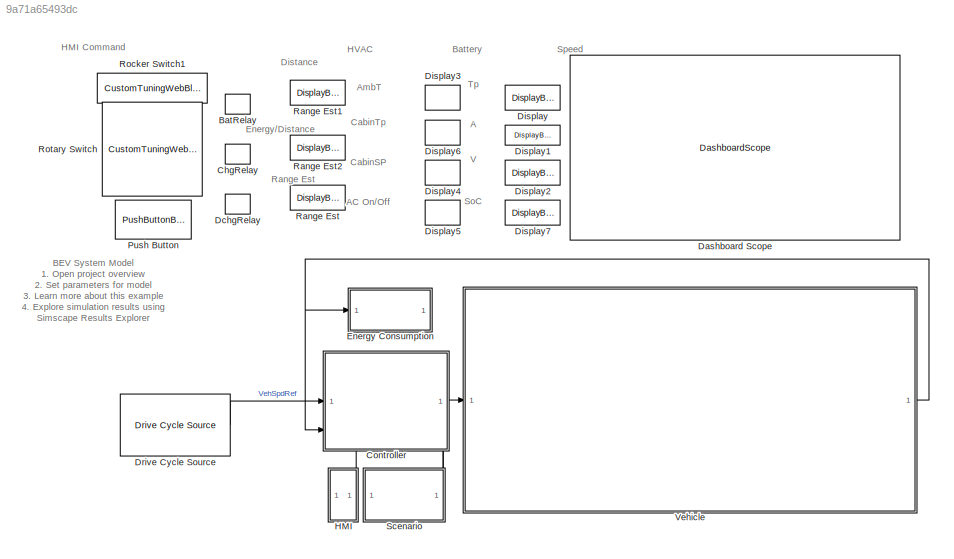
MODEL slx_9a71a65493dc
KIND model
CONFIG AbsTol = auto
CONFIG EnableMultiTasking = off
CONFIG FixedStep = auto
CONFIG MaxStep = auto
CONFIG MinStep = auto
CONFIG PreLoadFcn = % Load all parameters\nBEVSystemModelParams; % Load model parameters\n
CONFIG RelTol = 1e-3
CONFIG SampleTimeConstraint = Unconstrained
CONFIG SolverName = daessc
CONFIG StartTime = 0
CONFIG StopTime = 50
BLOCK [LampBlock] BatRelay
  LabelPosition = Hide
  NameLocation = top
BLOCK [LampBlock] ChgRelay
  LabelPosition = Hide
  NameLocation = top
BLOCK [SubSystem] Controller
  PortSchema = {"entries":[{"content":{"sides":[{"content":{"connectorIds":["In4","In1"]},"type":"ConnectorPlacement.EquallySpacedRectSide","uuid":"c1a23be5-b2bd-489c-89d3-d8ff166adbae"},{"content":{"connectorIds":["Out1"],"side":"RIGHT"},"type":"ConnectorPlacement.EquallySpacedRectSide","uuid":"158e6e89-d1bb-4c90-8b36-55bfa29ba4ac"},{"content":{"side":"TOP"},"type":"ConnectorPlacement.EquallySpacedRectSide","uu...<+389ch>
  ReferencedSubsystem = ControllerFRM
BLOCK [DashboardScope] Dashboard Scope
  Ymax = 150
  Ymin = 0
BLOCK [LampBlock] DchgRelay
  LabelPosition = Hide
  NameLocation = top
BLOCK [DisplayBlock] Display
  Format = Custom
  FormatString = %.2f
  LabelPosition = Hide
  Transparency = 1
BLOCK [DisplayBlock] Display1
  Format = Custom
  FormatString = %.2f
  LabelPosition = Hide
  Transparency = 1
BLOCK [DisplayBlock] Display2
  Format = Custom
  FormatString = %.2f
  LabelPosition = Hide
  Transparency = 1
BLOCK [DisplayBlock] Display3
  Format = Custom
  FormatString = %.1f
  LabelPosition = Hide
  Transparency = 1
BLOCK [DisplayBlock] Display4
  Format = Custom
  FormatString = %.1f
  LabelPosition = Hide
  Transparency = 1
BLOCK [DisplayBlock] Display5
  Format = Integer
  FormatString = %.2f
  LabelPosition = Hide
  Transparency = 1
BLOCK [DisplayBlock] Display6
  Format = Custom
  FormatString = %.1f
  LabelPosition = Hide
  Transparency = 1
BLOCK [DisplayBlock] Display7
  Format = Custom
  FormatString = %.2f
  LabelPosition = Hide
  Transparency = 1
BLOCK [Reference] Drive Cycle Source  REF=autolibshared/Drive Cycle Source
  AttributesFormatString = %<cycleVar> (%<tfinal>)
  LibrarySourceBlock = autolibscenario/Drive Cycle Source
  SourceBlock = autolibshared/Drive Cycle Source
  SourceType = Drive Cycle Source
BLOCK [SubSystem] Energy Consumption
  ReferencedSubsystem = EnergyElectric
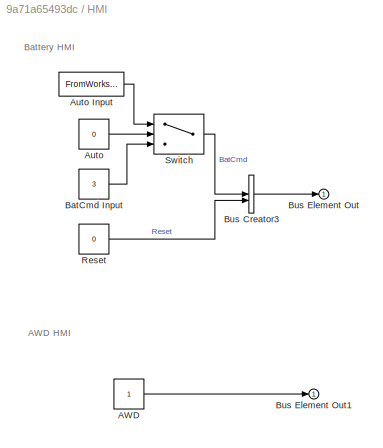
BLOCK [SubSystem] HMI
  PortSchema = {"entries":[{"content":{"sides":[{"content":{"connectorIds":[]},"type":"ConnectorPlacement.EquallySpacedRectSide","uuid":"50832a8a-8417-4230-aa82-5b85cff079b8"},{"content":{"connectorIds":[],"side":"RIGHT"},"type":"ConnectorPlacement.EquallySpacedRectSide","uuid":"cda52174-04c6-45a9-86fe-6715da851437"},{"content":{"connectorIds":["Out1"],"side":"TOP"},"type":"ConnectorPlacement.EquallySpacedRectSi...<+235ch>
BLOCK [Constant] HMI/AWD
BLOCK [Constant] HMI/Auto
  Value = 0
BLOCK [FromWorkspace] HMI/Auto Input
  VariableName = BatCmdData
BLOCK [Constant] HMI/BatCmd Input
  Value = 3
BLOCK [BusCreator] HMI/Bus Creator3
  DisplayOption = bar
  InheritFromInputs = on
  Inputs = 2
BLOCK [Outport] HMI/Bus Element Out
BLOCK [Outport] HMI/Bus Element Out1
BLOCK [Constant] HMI/Reset
  Value = 0
BLOCK [Switch] HMI/Switch
  Criteria = u2 > Threshold
  InputSameDT = off
  SaturateOnIntegerOverflow = off
BLOCK [PushButtonBlock] Push Button
  ButtonText = AWD
  ButtonType = Latch
  Icon = Hexagon
  IconAlignment = Right
  IconColor = On
  OffValue = 1.000000
BLOCK [DisplayBlock] Range Est
  Format = Custom
  FormatString = %.1f
  LabelPosition = Hide
  Transparency = 1
BLOCK [DisplayBlock] Range Est1
  Format = Custom
  FormatString = %.3f
  LabelPosition = Hide
  Transparency = 1
BLOCK [DisplayBlock] Range Est2
  Format = Custom
  FormatString = %.2f
  LabelPosition = Hide
  Transparency = 1
BLOCK [CustomTuningWebBlock] Rocker Switch1
  Configuration = {"components":[{"name":"CustomSwitchStateComponent","settings":{"position":[0,0,1,1],"states":[{"HitRegion":{"position":[0,0,0.5,1]},"Image":{"position":[0.13,0,1,0.75],"size":[1,0.75],"src":"data:image\/svg+xml;base64,PHN2ZyB4bWxucz0iaHR0cDovL3d3dy53My5vcmcvMjAwMC9zdmciIHhtbG5zOnhsaW5rPSJodHRwOi8vd3d3LnczLm9yZy8xOTk5L3hsaW5rIiB2aWV3Qm94PSIwIDAgNzUgMjQuOCI+PGRlZnM+PHN0eWxlPi5jbHMtMXtmaWxsOnVybCgjc...<+9080ch>
  LabelPosition = Hide
  ShowInitialText = on
BLOCK [CustomTuningWebBlock] Rotary Switch
  Configuration = {"components":[{"name":"RotarySwitchComponent","settings":{"arcAngle":210,"arcAngleOffset":165,"handle":{"size":[150,150],"src":"data:image\/svg+xml;base64,PHN2ZyBpZD0iTGF5ZXJfMSIgZGF0YS1uYW1lPSJMYXllciAxIiB4bWxucz0iaHR0cDovL3d3dy53My5vcmcvMjAwMC9zdmciIHhtbG5zOnhsaW5rPSJodHRwOi8vd3d3LnczLm9yZy8xOTk5L3hsaW5rIiB2aWV3Qm94PSIwIDAgMTIxIDEyMSI+PGRlZnM+PHN0eWxlPi5jbHMtMXtmaWxsOnVybCgjbGluZWFyLWdyYWRpZW50...<+19501ch>
  LabelPosition = Hide
  ShowInitialText = on
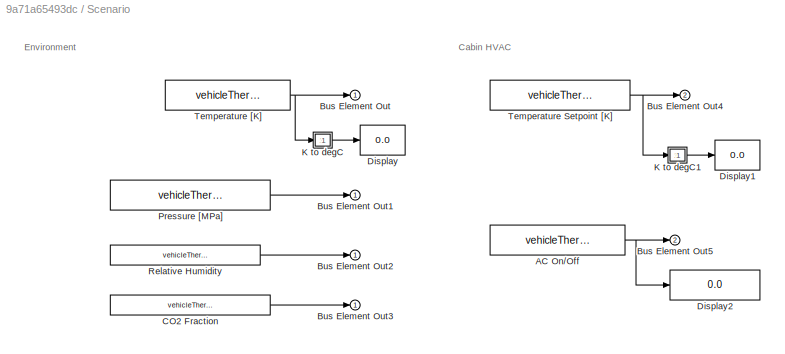
BLOCK [SubSystem] Scenario
  PortSchema = {"entries":[{"content":{"sides":[{"content":{"connectorIds":[]},"type":"ConnectorPlacement.EquallySpacedRectSide","uuid":"eb8d1f37-8208-4a35-a227-ee3e7712aac0"},{"content":{"connectorIds":[],"side":"RIGHT"},"type":"ConnectorPlacement.EquallySpacedRectSide","uuid":"04c1ce39-a668-46a3-bb9a-590d9fa6d188"},{"content":{"connectorIds":["Out1","Out2"],"side":"TOP"},"type":"ConnectorPlacement.EquallySpace...<+242ch>
  Tag = cold weather
BLOCK [Constant] Scenario/AC On//Off
  Value = vehicleThermal.AConoff
BLOCK [Outport] Scenario/Bus Element Out
BLOCK [Outport] Scenario/Bus Element Out1
BLOCK [Outport] Scenario/Bus Element Out2
BLOCK [Outport] Scenario/Bus Element Out3
BLOCK [Outport] Scenario/Bus Element Out4
  Port = 2
BLOCK [Outport] Scenario/Bus Element Out5
  Port = 2
BLOCK [Constant] Scenario/CO2 Fraction
  Value = vehicleThermal.cabin_CO2_init
BLOCK [Display] Scenario/Display
  Decimation = 1
BLOCK [Display] Scenario/Display1
  Decimation = 1
BLOCK [Display] Scenario/Display2
  Decimation = 1
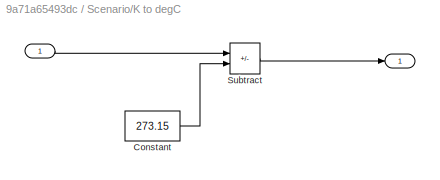
BLOCK [SubSystem] Scenario/K to degC
BLOCK [Inport] Scenario/K to degC/ 
BLOCK [Outport] Scenario/K to degC/  
BLOCK [Constant] Scenario/K to degC/Constant
  Value = 273.15
BLOCK [Sum] Scenario/K to degC/Subtract
  IconShape = rectangular
  Inputs = +-
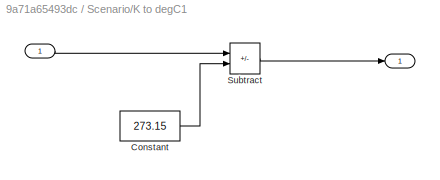
BLOCK [SubSystem] Scenario/K to degC1
BLOCK [Inport] Scenario/K to degC1/ 
BLOCK [Outport] Scenario/K to degC1/  
BLOCK [Constant] Scenario/K to degC1/Constant
  Value = 273.15
BLOCK [Sum] Scenario/K to degC1/Subtract
  IconShape = rectangular
  Inputs = +-
BLOCK [Constant] Scenario/Pressure [MPa]
  Value = vehicleThermal.cabin_p_init
BLOCK [Constant] Scenario/Relative Humidity
  Value = vehicleThermal.cabin_RH_init
BLOCK [Constant] Scenario/Temperature Setpoint [K]
  Value = vehicleThermal.CabinSpTp
BLOCK [Constant] Scenario/Temperature [K]
  Value = vehicleThermal.ambient
BLOCK [SubSystem] Vehicle
  ReferencedSubsystem = VehicleElectric
ANNOTATION (root): BEV System Model 1. Open project overview 2. Set parameters for model 3. Learn more about this example 4. Explore simulation results using Simscape Results Explorer 5. Apply a preset configuration 6. BEV model setup APP .
ANNOTATION (root): A
ANNOTATION (root): SoC
ANNOTATION (root): Tp
ANNOTATION (root): V
ANNOTATION (root): AC On/Off
ANNOTATION (root): AmbT
ANNOTATION (root): Battery
ANNOTATION (root): CabinSP
ANNOTATION (root): CabinTp
ANNOTATION (root): Distance
ANNOTATION (root): Energy/Distance
ANNOTATION (root): HMI Command
ANNOTATION (root): HVAC
ANNOTATION (root): Range Est
ANNOTATION (root): Speed
ANNOTATION HMI: AWD HMI
ANNOTATION HMI: Battery HMI
ANNOTATION Scenario: Cabin HVAC
ANNOTATION Scenario: Environment
LINE Controller:1 -> Vehicle:1
LINE Drive Cycle Source:1 -> Controller:1
LINE HMI/AWD:1 -> HMI/Bus Element Out1:1
LINE HMI/Auto Input:1 -> HMI/Switch:1
LINE HMI/Auto:1 -> HMI/Switch:2
LINE HMI/BatCmd Input:1 -> HMI/Switch:3
LINE HMI/Bus Creator3:1 -> HMI/Bus Element Out:1
LINE HMI/Reset:1 -> HMI/Bus Creator3:2
LINE HMI/Switch:1 -> HMI/Bus Creator3:1
LINE HMI:1 -> Controller:5
NET Scenario/AC On//Off:1 -> Scenario/Bus Element Out5:1, Scenario/Display2:1
LINE Scenario/CO2 Fraction:1 -> Scenario/Bus Element Out3:1
LINE Scenario/K to degC/ :1 -> Scenario/K to degC/Subtract:1
LINE Scenario/K to degC/Constant:1 -> Scenario/K to degC/Subtract:2
LINE Scenario/K to degC/Subtract:1 -> Scenario/K to degC/  :1
LINE Scenario/K to degC1/ :1 -> Scenario/K to degC1/Subtract:1
LINE Scenario/K to degC1/Constant:1 -> Scenario/K to degC1/Subtract:2
LINE Scenario/K to degC1/Subtract:1 -> Scenario/K to degC1/  :1
LINE Scenario/K to degC1:1 -> Scenario/Display1:1
LINE Scenario/K to degC:1 -> Scenario/Display:1
LINE Scenario/Pressure [MPa]:1 -> Scenario/Bus Element Out1:1
LINE Scenario/Relative Humidity:1 -> Scenario/Bus Element Out2:1
NET Scenario/Temperature Setpoint [K]:1 -> Scenario/Bus Element Out4:1, Scenario/K to degC1:1
NET Scenario/Temperature [K]:1 -> Scenario/Bus Element Out:1, Scenario/K to degC:1
LINE Scenario:1 -> Controller:2
LINE Scenario:2 -> Controller:3
NET Vehicle:1 -> Controller:4, Energy Consumption:1
note: NET lines group one-source signal fan-out (src -> all destinations, sorted); 1:1 wires keep LINE
